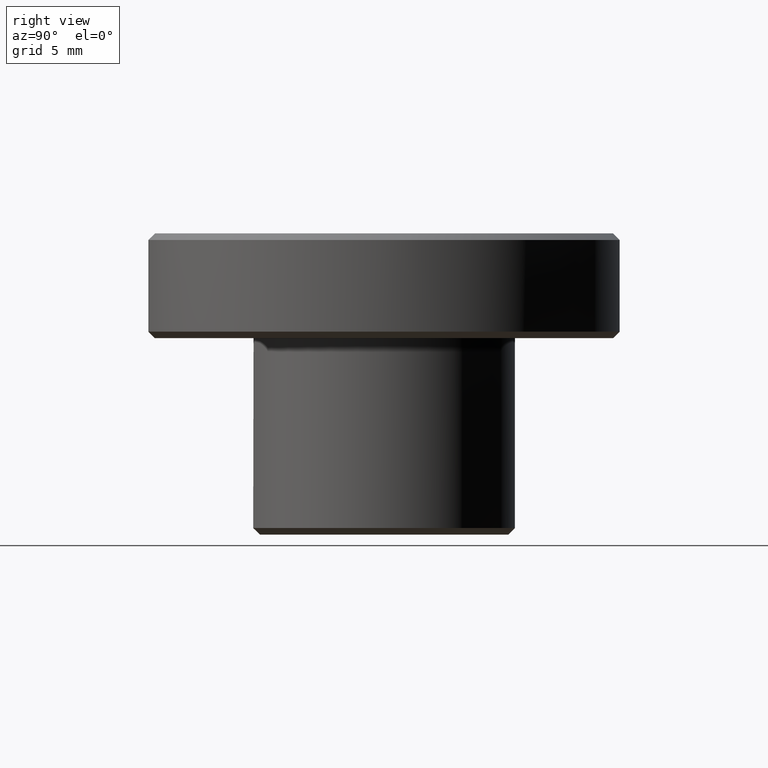
[diagram: clean part render]
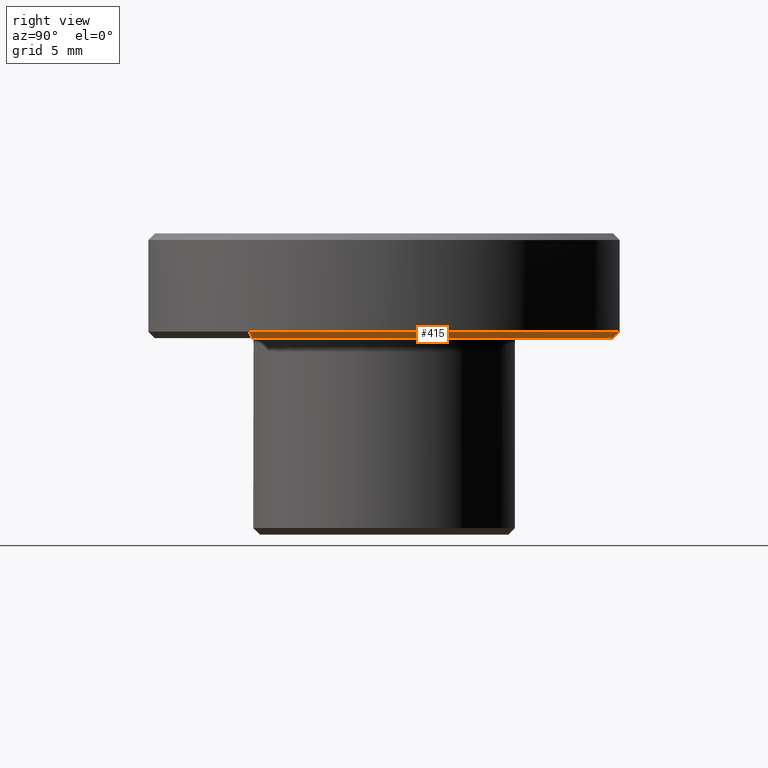
[diagram: same view with one face highlighted and labeled with its STEP entity id]
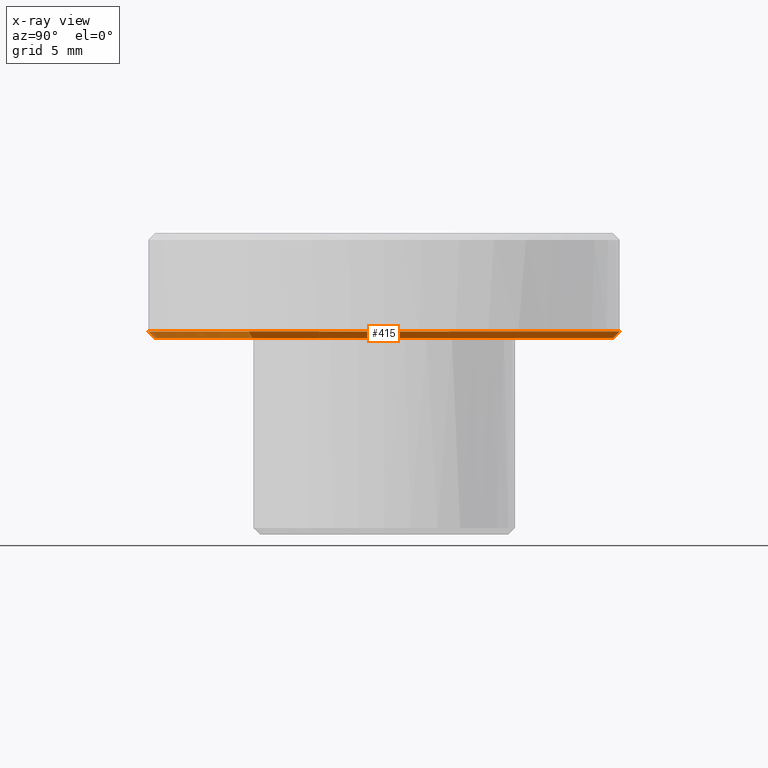
[diagram: x-ray of the same camera — body ghosted, the highlighted face saturated]
A machine part, right view. The second image highlights one B-rep face of the part: STEP entity #415.
The next image is the same camera in x-ray: the body ghosted, the highlighted face saturated — about 21% of this face is hidden behind the body in this view.
In plain terms, the highlighted face is a freeform B-spline surface patch.
Its self-contained STEP definition (entity closure, byte-faithful):
#260=CARTESIAN_POINT('',(14.319921146030703,-10.037555211378052,14.987499999999999));
#261=CARTESIAN_POINT('',(17.535725391208214,-5.449778383031156,14.987499999999997));
#262=CARTESIAN_POINT('',(17.486834129584690,0.152605289527813,14.987500000000001));
#263=CARTESIAN_POINT('',(17.334228840056877,17.639439419112509,14.987499999999997));
#264=CARTESIAN_POINT('',(-0.152605289527813,17.486834129584690,14.987500000000001));
#265=CARTESIAN_POINT('',(-17.639439419112509,17.334228840056877,14.987499999999997));
#266=CARTESIAN_POINT('',(-17.486834129584690,-0.152605289527813,14.987500000000001));
#267=CARTESIAN_POINT('',(-17.334228840056877,-17.639439419112509,14.987499999999997));
#268=CARTESIAN_POINT('',(0.152605289527813,-17.486834129584690,14.987500000000001));
#269=CARTESIAN_POINT('',(14.750081750864162,-10.339076482113015,15.512812500000001));
#270=CARTESIAN_POINT('',(18.062486548867700,-5.613485985995352,15.512812500000004));
#271=CARTESIAN_POINT('',(18.012126627294400,0.157189447706803,15.512812500000001));
#272=CARTESIAN_POINT('',(17.854937179587598,18.169316075001191,15.512812499999999));
#273=CARTESIAN_POINT('',(-0.157189447706803,18.012126627294400,15.512812500000001));
#274=CARTESIAN_POINT('',(-18.169316075001191,17.854937179587598,15.512812499999999));
#275=CARTESIAN_POINT('',(-18.012126627294400,-0.157189447706803,15.512812500000001));
#276=CARTESIAN_POINT('',(-17.854937179587598,-18.169316075001191,15.512812499999999));
#277=CARTESIAN_POINT('',(0.157189447706803,-18.012126627294400,15.512812500000001));
#285=(BOUNDED_SURFACE()B_SPLINE_SURFACE(2,1,((#260,#269),(#261,#270),(#262,#271),(#263,#272),(#264,#273),(#265,#274),(#266,#275),(#267,#276),(#268,#277)),.UNSPECIFIED.,.F.,.F.,.U.)B_SPLINE_SURFACE_WITH_KNOTS((3,2,2,2,3),(2,2),(0.0,11.937841974373820,41.782446910308373,71.627051846242921,101.471656782177500),(0.0,1.0),.UNSPECIFIED.)GEOMETRIC_REPRESENTATION_ITEM()RATIONAL_B_SPLINE_SURFACE(((0.859411254969543,0.859411254969543),(0.882842712474619,0.882842712474619),(1.0,1.0),(0.707106781186548,0.707106781186548),(1.0,1.0),(0.707106781186548,0.707106781186548),(1.0,1.0),(0.707106781186548,0.707106781186548),(1.0,1.0)))REPRESENTATION_ITEM('')SURFACE());
#286=CARTESIAN_POINT('',(17.500000000000000,0.0,15.0));
#287=VERTEX_POINT('',#286);
#288=CARTESIAN_POINT('',(14.330156972439550,-10.044730018534210,15.0));
#289=VERTEX_POINT('',#288);
#290=CARTESIAN_POINT('',(17.500000000000000,0.0,15.0));
#291=CARTESIAN_POINT('',(17.499999999999996,-5.522523042426500,14.999999999999996));
#292=CARTESIAN_POINT('',(14.330156972439546,-10.044730018534207,15.000000000000002));
#300=(BOUNDED_CURVE()B_SPLINE_CURVE(2,(#290,#291,#292),.UNSPECIFIED.,.F.,.U.)B_SPLINE_CURVE_WITH_KNOTS((3,3),(0.0,0.098673726202874),.UNSPECIFIED.)CURVE()GEOMETRIC_REPRESENTATION_ITEM()RATIONAL_B_SPLINE_CURVE((1.0,0.884396538880492,0.860049271925871))REPRESENTATION_ITEM(''));
#301=EDGE_CURVE('',#287,#289,#300,.T.);
#302=ORIENTED_EDGE('',*,*,#301,.F.);
#303=CARTESIAN_POINT('',(-17.500000000000000,0.0,15.0));
#304=VERTEX_POINT('',#303);
#305=CARTESIAN_POINT('',(-17.500000000000000,0.0,15.0));
#306=CARTESIAN_POINT('',(-17.499999999999996,17.499999999999996,14.999999999999995));
#307=CARTESIAN_POINT('',(0.0,17.500000000000000,15.0));
#308=CARTESIAN_POINT('',(17.499999999999996,17.499999999999996,14.999999999999995));
#309=CARTESIAN_POINT('',(17.500000000000000,0.0,15.0));
#317=(BOUNDED_CURVE()B_SPLINE_CURVE(2,(#305,#306,#307,#308,#309),.UNSPECIFIED.,.F.,.U.)B_SPLINE_CURVE_WITH_KNOTS((3,2,3),(0.500000000000000,0.750000000000000,1.0),.UNSPECIFIED.)CURVE()GEOMETRIC_REPRESENTATION_ITEM()RATIONAL_B_SPLINE_CURVE((1.0,0.707106781186548,1.0,0.707106781186548,1.0))REPRESENTATION_ITEM(''));
#318=EDGE_CURVE('',#304,#287,#317,.T.);
#319=ORIENTED_EDGE('',*,*,#318,.F.);
#320=CARTESIAN_POINT('',(0.152714371254917,-17.499333653627250,15.000000000004540));
#321=VERTEX_POINT('',#320);
#322=CARTESIAN_POINT('',(0.152714371254917,-17.499333653627247,15.000000000004546));
#323=CARTESIAN_POINT('',(0.076358639395613,-17.499999999999996,15.000000000000002));
#324=CARTESIAN_POINT('',(0.0,-17.500000000000000,15.0));
#325=CARTESIAN_POINT('',(-17.499999999999996,-17.499999999999996,14.999999999999995));
#326=CARTESIAN_POINT('',(-17.500000000000000,0.0,15.0));
#334=(BOUNDED_CURVE()B_SPLINE_CURVE(2,(#322,#323,#324,#325,#326),.UNSPECIFIED.,.F.,.U.)B_SPLINE_CURVE_WITH_KNOTS((3,2,3),(0.248460105664342,0.250000000000000,0.500000000000000),.UNSPECIFIED.)CURVE()GEOMETRIC_REPRESENTATION_ITEM()RATIONAL_B_SPLINE_CURVE((0.996414028098853,0.998195901565586,1.0,0.707106781186548,1.0))REPRESENTATION_ITEM(''));
#335=EDGE_CURVE('',#321,#304,#334,.T.);
#336=ORIENTED_EDGE('',*,*,#335,.F.);
#337=CARTESIAN_POINT('',(0.157077638971336,-17.999314615155171,15.500000000000069));
#338=VERTEX_POINT('',#337);
#339=CARTESIAN_POINT('',(0.152714371254917,-17.499333653627250,15.000000000004540));
#340=CARTESIAN_POINT('',(0.157077638971336,-17.999314615155171,15.500000000000069));
#341=QUASI_UNIFORM_CURVE('',1,(#339,#340),.UNSPECIFIED.,.F.,.U.);
#342=EDGE_CURVE('',#321,#338,#341,.T.);
#343=ORIENTED_EDGE('',*,*,#342,.T.);
#344=CARTESIAN_POINT('',(-18.0,0.0,15.500000000000000));
#345=VERTEX_POINT('',#344);
#346=CARTESIAN_POINT('',(-18.0,0.0,15.500000000000000));
#347=CARTESIAN_POINT('',(-18.000000000000007,-18.000000000000007,15.500000000000005));
#348=CARTESIAN_POINT('',(0.0,-18.0,15.500000000000000));
#349=CARTESIAN_POINT('',(0.078540314773233,-18.000000000000004,15.499999999999998));
#350=CARTESIAN_POINT('',(0.157077638971336,-17.999314615155175,15.500000000000075));
#358=(BOUNDED_CURVE()B_SPLINE_CURVE(2,(#346,#347,#348,#349,#350),.UNSPECIFIED.,.F.,.U.)B_SPLINE_CURVE_WITH_KNOTS((3,2,3),(0.0,0.250000000000000,0.251539894334999),.UNSPECIFIED.)CURVE()GEOMETRIC_REPRESENTATION_ITEM()RATIONAL_B_SPLINE_CURVE((1.0,0.707106781186547,1.0,0.998195901566358,0.996414028100378))REPRESENTATION_ITEM(''));
#359=EDGE_CURVE('',#345,#338,#358,.T.);
#360=ORIENTED_EDGE('',*,*,#359,.F.);
#361=CARTESIAN_POINT('',(-0.157064489507511,17.999314729899101,15.500000000000000));
#362=VERTEX_POINT('',#361);
#363=CARTESIAN_POINT('',(-0.157064489507511,17.999314729899098,15.500000000000004));
#364=CARTESIAN_POINT('',(-18.0,17.843614826917293,15.499999999999995));
#365=CARTESIAN_POINT('',(-18.0,0.0,15.500000000000000));
#373=(BOUNDED_CURVE()B_SPLINE_CURVE(2,(#363,#364,#365),.UNSPECIFIED.,.F.,.U.)B_SPLINE_CURVE_WITH_KNOTS((3,3),(0.751539765653236,1.0),.UNSPECIFIED.)CURVE()GEOMETRIC_REPRESENTATION_ITEM()RATIONAL_B_SPLINE_CURVE((0.996414325906187,0.708910728860126,1.0))REPRESENTATION_ITEM(''));
#374=EDGE_CURVE('',#362,#345,#373,.T.);
#375=ORIENTED_EDGE('',*,*,#374,.F.);
#376=CARTESIAN_POINT('',(18.0,0.0,15.500000000000000));
#377=VERTEX_POINT('',#376);
#378=CARTESIAN_POINT('',(18.0,0.0,15.500000000000000));
#379=CARTESIAN_POINT('',(18.000000000000007,18.000000000000007,15.500000000000005));
#380=CARTESIAN_POINT('',(0.0,18.0,15.500000000000000));
#381=CARTESIAN_POINT('',(-0.078533739665535,17.999999999999996,15.499999999999998));
#382=CARTESIAN_POINT('',(-0.157064489507511,17.999314729899098,15.500000000000004));
#390=(BOUNDED_CURVE()B_SPLINE_CURVE(2,(#378,#379,#380,#381,#382),.UNSPECIFIED.,.F.,.U.)B_SPLINE_CURVE_WITH_KNOTS((3,2,3),(0.500000000000000,0.750000000000000,0.751539765653236),.UNSPECIFIED.)CURVE()GEOMETRIC_REPRESENTATION_ITEM()RATIONAL_B_SPLINE_CURVE((1.0,0.707106781186547,1.0,0.998196052326421,0.996414325906187))REPRESENTATION_ITEM(''));
#391=EDGE_CURVE('',#377,#362,#390,.T.);
#392=ORIENTED_EDGE('',*,*,#391,.F.);
#393=CARTESIAN_POINT('',(14.739590028790010,-10.331722304785830,15.500000000000380));
#394=VERTEX_POINT('',#393);
#395=CARTESIAN_POINT('',(14.739590028790001,-10.331722304785833,15.500000000000380));
#396=CARTESIAN_POINT('',(17.999999999999993,-5.680309415077398,15.500000000000000));
#397=CARTESIAN_POINT('',(18.0,0.0,15.500000000000000));
#405=(BOUNDED_CURVE()B_SPLINE_CURVE(2,(#395,#396,#397),.UNSPECIFIED.,.F.,.U.)B_SPLINE_CURVE_WITH_KNOTS((3,3),(0.401326273796971,0.500000000000000),.UNSPECIFIED.)CURVE()GEOMETRIC_REPRESENTATION_ITEM()RATIONAL_B_SPLINE_CURVE((0.860049271925794,0.884396538880310,1.0))REPRESENTATION_ITEM(''));
#406=EDGE_CURVE('',#394,#377,#405,.T.);
#407=ORIENTED_EDGE('',*,*,#406,.F.);
#408=CARTESIAN_POINT('',(14.330156972439550,-10.044730018534210,15.0));
#409=CARTESIAN_POINT('',(14.739590028790010,-10.331722304785830,15.500000000000380));
#410=QUASI_UNIFORM_CURVE('',1,(#408,#409),.UNSPECIFIED.,.F.,.U.);
#411=EDGE_CURVE('',#289,#394,#410,.T.);
#412=ORIENTED_EDGE('',*,*,#411,.F.);
#413=EDGE_LOOP('',(#302,#319,#336,#343,#360,#375,#392,#407,#412));
#414=FACE_OUTER_BOUND('',#413,.T.);
#415=ADVANCED_FACE('',(#414),#285,.T.);